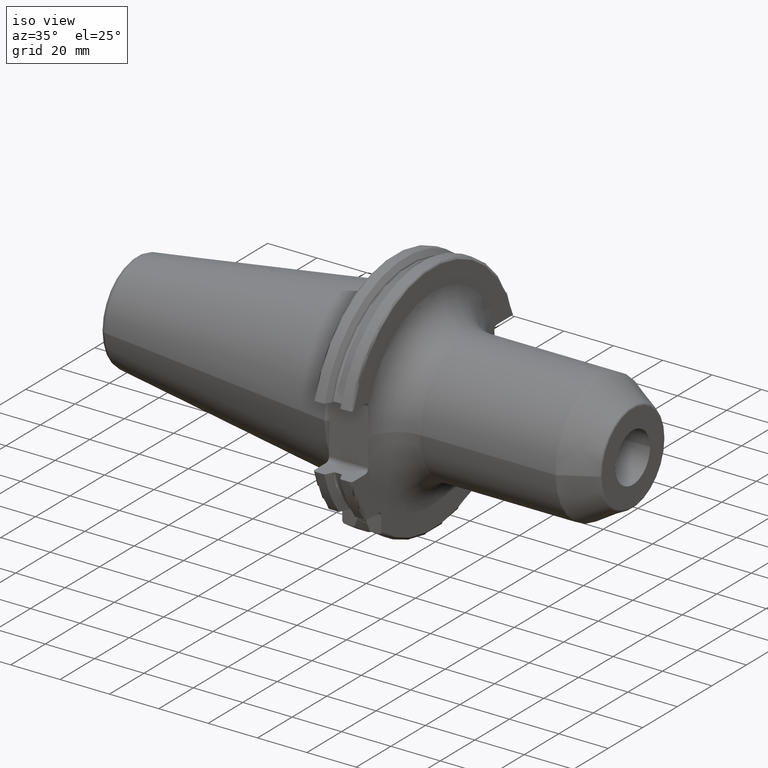
[diagram: clean part render]
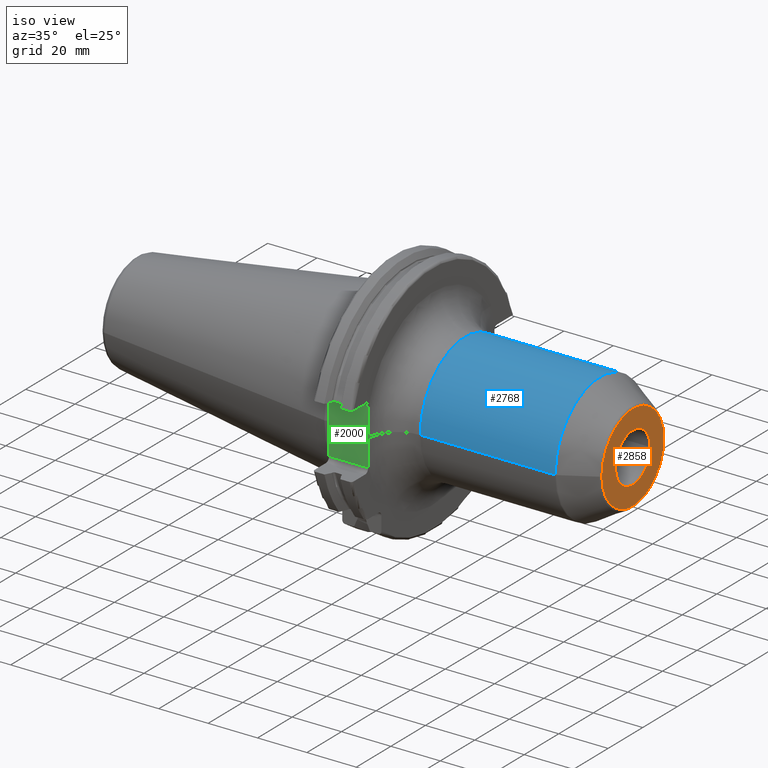
[diagram: same view with three faces highlighted in distinct colors, each labeled with its STEP entity id]
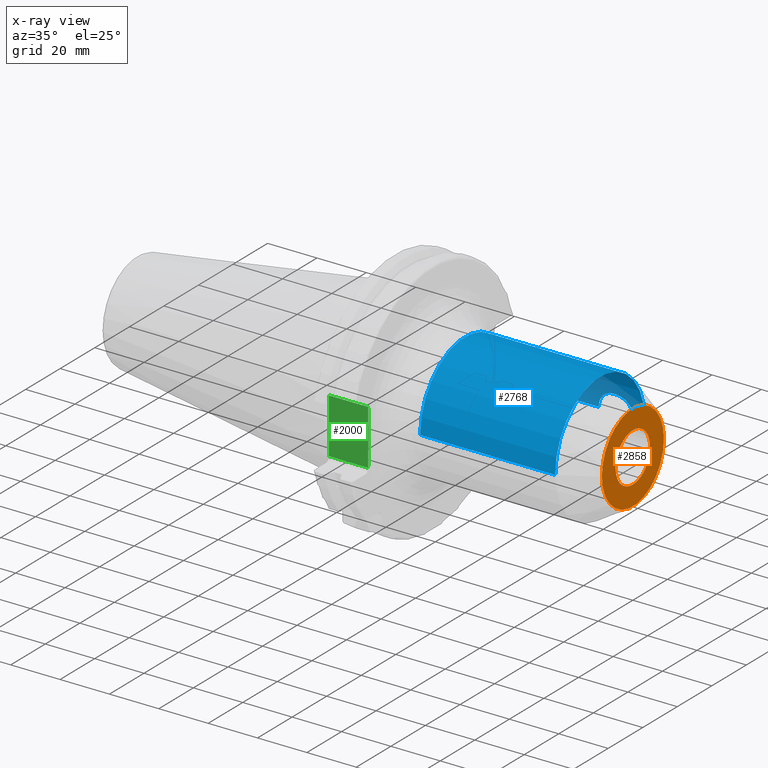
[diagram: x-ray of the same camera — body ghosted, the three highlighted faces saturated]
A machine part, iso view with three faces highlighted in distinct colors.
The next image is the same camera in x-ray (body ghosted, the three faces saturated) — at least one of them is partly hidden behind the body in this view.
Their STEP definitions:

[orange] entity #2858 — the highlighted planar face has unit normal (1, 0, 0).
#1129=CARTESIAN_POINT('',(1.E2,0.E0,0.E0));
#1130=DIRECTION('',(1.E0,0.E0,0.E0));
#1131=DIRECTION('',(0.E0,1.E0,0.E0));
#1132=AXIS2_PLACEMENT_3D('',#1129,#1130,#1131);
#1134=CARTESIAN_POINT('',(1.E2,0.E0,0.E0));
#1135=DIRECTION('',(1.E0,0.E0,0.E0));
#1136=DIRECTION('',(0.E0,-1.E0,0.E0));
#1137=AXIS2_PLACEMENT_3D('',#1134,#1135,#1136);
#1139=CARTESIAN_POINT('',(1.E2,0.E0,0.E0));
#1140=DIRECTION('',(-1.E0,0.E0,0.E0));
#1141=DIRECTION('',(0.E0,1.E0,0.E0));
#1142=AXIS2_PLACEMENT_3D('',#1139,#1140,#1141);
#1144=CARTESIAN_POINT('',(1.E2,0.E0,0.E0));
#1145=DIRECTION('',(-1.E0,0.E0,0.E0));
#1146=DIRECTION('',(0.E0,-1.E0,0.E0));
#1147=AXIS2_PLACEMENT_3D('',#1144,#1145,#1146);
#1662=CARTESIAN_POINT('',(1.E2,-1.E1,0.E0));
#1663=VERTEX_POINT('',#1662);
#1672=CARTESIAN_POINT('',(1.E2,1.E1,0.E0));
#1673=VERTEX_POINT('',#1672);
#1698=CARTESIAN_POINT('',(1.E2,1.791709623135E1,-2.610513321918E-14));
#1699=CARTESIAN_POINT('',(1.E2,-1.791709623135E1,2.391092176421E-14));
#1700=VERTEX_POINT('',#1698);
#1701=VERTEX_POINT('',#1699);
#2843=CARTESIAN_POINT('',(1.E2,0.E0,0.E0));
#2844=DIRECTION('',(1.E0,0.E0,0.E0));
#2845=DIRECTION('',(0.E0,-1.E0,0.E0));
#2846=AXIS2_PLACEMENT_3D('',#2843,#2844,#2845);
#2847=PLANE('',#2846);
#2849=ORIENTED_EDGE('',*,*,#2848,.T.);
#2851=ORIENTED_EDGE('',*,*,#2850,.T.);
#2852=EDGE_LOOP('',(#2849,#2851));
#2853=FACE_OUTER_BOUND('',#2852,.F.);
#2854=ORIENTED_EDGE('',*,*,#2827,.T.);
#2855=ORIENTED_EDGE('',*,*,#2806,.T.);
#2856=EDGE_LOOP('',(#2854,#2855));
#2857=FACE_BOUND('',#2856,.F.);
#2858=ADVANCED_FACE('',(#2853,#2857),#2847,.T.);
#1133=CIRCLE('',#1132,1.E1);
#1138=CIRCLE('',#1137,1.E1);
#1143=CIRCLE('',#1142,1.791709623135E1);
#1148=CIRCLE('',#1147,1.791709623135E1);
#2806=EDGE_CURVE('',#1663,#1673,#1138,.T.);
#2827=EDGE_CURVE('',#1673,#1663,#1133,.T.);
#2848=EDGE_CURVE('',#1700,#1701,#1143,.T.);
#2850=EDGE_CURVE('',#1701,#1700,#1148,.T.);

[blue] entity #2768 — the highlighted cylindrical surface (partial cylindrical patch) has radius 26 mm, axis along (1, 0, 0).
#1014=CARTESIAN_POINT('',(8.2E1,2.6E1,0.E0));
#1015=CARTESIAN_POINT('',(8.2E1,2.6E1,3.688700365547E-1));
#1016=CARTESIAN_POINT('',(8.194241328951E1,2.598440816567E1,1.095768183701E0));
#1017=CARTESIAN_POINT('',(8.168752604998E1,2.591696560013E1,2.162390248794E0));
#1018=CARTESIAN_POINT('',(8.127181305540E1,2.581202667241E1,3.171802240503E0));
#1019=CARTESIAN_POINT('',(8.070403285449E1,2.567891785329E1,4.106632391955E0));
#1020=CARTESIAN_POINT('',(7.999327990587E1,2.552920651528E1,4.946935450606E0));
#1021=CARTESIAN_POINT('',(7.915481362706E1,2.537718516152E1,5.670026667281E0));
#1022=CARTESIAN_POINT('',(7.820516529677E1,2.523784940180E1,6.256313396823E0));
#1023=CARTESIAN_POINT('',(7.717848016621E1,2.512726555477E1,6.682868557413E0));
#1024=CARTESIAN_POINT('',(7.611005969530E1,2.505679734064E1,6.940164530513E0));
#1025=CARTESIAN_POINT('',(7.502167977437E1,2.503203016422E1,7.028211948375E0));
#1026=CARTESIAN_POINT('',(7.393184636579E1,2.505494536913E1,6.946790718010E0));
#1027=CARTESIAN_POINT('',(7.286170085759E1,2.512379246407E1,6.695800664134E0));
#1028=CARTESIAN_POINT('',(7.183359951259E1,2.523292947042E1,6.275924090974E0));
#1029=CARTESIAN_POINT('',(7.088037431050E1,2.537136925578E1,5.695837803765E0));
#1030=CARTESIAN_POINT('',(7.003282006293E1,2.552401413418E1,4.973728696240E0));
#1031=CARTESIAN_POINT('',(6.931285574607E1,2.567510483974E1,4.130709548227E0));
#1032=CARTESIAN_POINT('',(6.873763593473E1,2.580969489378E1,3.191229531009E0));
#1033=CARTESIAN_POINT('',(6.831678986258E1,2.591583569490E1,2.176807168033E0));
#1034=CARTESIAN_POINT('',(6.805844774736E1,2.598417363926E1,1.103674348857E0));
#1035=CARTESIAN_POINT('',(6.8E1,2.6E1,3.716442086953E-1));
#1036=CARTESIAN_POINT('',(6.8E1,2.6E1,0.E0));
#1038=CARTESIAN_POINT('',(8.673205080757E1,0.E0,0.E0));
#1039=DIRECTION('',(-1.E0,0.E0,0.E0));
#1040=DIRECTION('',(0.E0,-1.E0,0.E0));
#1041=AXIS2_PLACEMENT_3D('',#1038,#1039,#1040);
#1043=CARTESIAN_POINT('',(3.205E1,0.E0,0.E0));
#1044=DIRECTION('',(1.E0,0.E0,0.E0));
#1045=DIRECTION('',(0.E0,1.E0,0.E0));
#1046=AXIS2_PLACEMENT_3D('',#1043,#1044,#1045);
#1201=DIRECTION('',(-9.999999997662E-1,-6.464800444348E-10,-2.162294211396E-5));
#1202=VECTOR('',#1201,3.595000000840E1);
#1203=CARTESIAN_POINT('',(6.8E1,2.6E1,0.E0));
#1204=LINE('',#1203,#1202);
#1210=DIRECTION('',(-9.999999998990E-1,4.250198603982E-10,1.421572071605E-5));
#1211=VECTOR('',#1210,5.468205081309E1);
#1212=CARTESIAN_POINT('',(8.673205080757E1,-2.6E1,6.624787872083E-12));
#1213=LINE('',#1212,#1211);
#1219=DIRECTION('',(-1.E0,0.E0,1.398051134671E-12));
#1220=VECTOR('',#1219,4.732050807569E0);
#1221=CARTESIAN_POINT('',(8.673205080757E1,2.6E1,-6.614053490555E-12));
#1222=LINE('',#1221,#1220);
#1665=CARTESIAN_POINT('',(8.2E1,2.6E1,0.E0));
#1667=VERTEX_POINT('',#1665);
#1669=CARTESIAN_POINT('',(6.8E1,2.6E1,0.E0));
#1671=VERTEX_POINT('',#1669);
#1678=CARTESIAN_POINT('',(3.205E1,-2.6E1,0.E0));
#1679=CARTESIAN_POINT('',(3.205E1,2.6E1,0.E0));
#1680=VERTEX_POINT('',#1678);
#1681=VERTEX_POINT('',#1679);
#1686=CARTESIAN_POINT('',(8.673205080757E1,2.6E1,0.E0));
#1687=CARTESIAN_POINT('',(8.673205080757E1,-2.6E1,0.E0));
#1688=VERTEX_POINT('',#1686);
#1689=VERTEX_POINT('',#1687);
#2750=CARTESIAN_POINT('',(1.50025E1,0.E0,0.E0));
#2751=DIRECTION('',(1.E0,0.E0,0.E0));
#2752=DIRECTION('',(0.E0,-1.E0,0.E0));
#2753=AXIS2_PLACEMENT_3D('',#2750,#2751,#2752);
#2754=CYLINDRICAL_SURFACE('',#2753,2.6E1);
#2756=ORIENTED_EDGE('',*,*,#2755,.F.);
#2758=ORIENTED_EDGE('',*,*,#2757,.F.);
#2760=ORIENTED_EDGE('',*,*,#2759,.F.);
#2762=ORIENTED_EDGE('',*,*,#2761,.T.);
#2763=ORIENTED_EDGE('',*,*,#2011,.F.);
#2765=ORIENTED_EDGE('',*,*,#2764,.F.);
#2766=EDGE_LOOP('',(#2756,#2758,#2760,#2762,#2763,#2765));
#2767=FACE_OUTER_BOUND('',#2766,.F.);
#2768=ADVANCED_FACE('',(#2767),#2754,.T.);
#1037=B_SPLINE_CURVE_WITH_KNOTS('',3,(#1014,#1015,#1016,#1017,#1018,#1019,#1020,
#1021,#1022,#1023,#1024,#1025,#1026,#1027,#1028,#1029,#1030,#1031,#1032,#1033,
#1034,#1035,#1036),.UNSPECIFIED.,.F.,.F.,(4,1,1,1,1,1,1,1,1,1,1,1,1,1,1,1,1,1,1,
1,4),(0.E0,5.E-2,1.E-1,1.5E-1,2.E-1,2.5E-1,3.E-1,3.5E-1,4.E-1,4.5E-1,5.E-1,
5.5E-1,6.E-1,6.5E-1,7.E-1,7.5E-1,8.E-1,8.5E-1,9.E-1,9.5E-1,1.E0),.UNSPECIFIED.);
#1042=CIRCLE('',#1041,2.6E1);
#1047=CIRCLE('',#1046,2.6E1);
#2011=EDGE_CURVE('',#1681,#1680,#1047,.T.);
#2755=EDGE_CURVE('',#1667,#1671,#1037,.T.);
#2757=EDGE_CURVE('',#1688,#1667,#1222,.T.);
#2759=EDGE_CURVE('',#1689,#1688,#1042,.T.);
#2761=EDGE_CURVE('',#1689,#1680,#1213,.T.);
#2764=EDGE_CURVE('',#1671,#1681,#1204,.T.);

[green] entity #2000 — the highlighted planar face has unit normal (0, 1, 0).
#157=DIRECTION('',(0.E0,3.274579944236E-5,9.999999994639E-1));
#158=VECTOR('',#157,4.377898527251E-1);
#159=CARTESIAN_POINT('',(1.905E1,-3.75E1,-1.115E1));
#160=LINE('',#159,#158);
#166=DIRECTION('',(0.E0,1.541898170726E-5,9.999999998811E-1));
#167=VECTOR('',#166,4.379632685916E-1);
#168=CARTESIAN_POINT('',(1.905E1,-3.750000675295E1,1.071203673146E1));
#169=LINE('',#168,#167);
#178=CARTESIAN_POINT('',(1.913682842217E1,-3.75E1,2.227582378035E-3));
#179=CARTESIAN_POINT('',(1.913683665024E1,-3.75E1,-1.190213575254E0));
#180=CARTESIAN_POINT('',(1.912285912665E1,-3.749999808856E1,-3.573910659861E0));
#181=CARTESIAN_POINT('',(1.907401116160E1,-3.750000669003E1,-7.155405654851E0));
#182=CARTESIAN_POINT('',(1.905E1,-3.749998566422E1,-9.528078238761E0));
#183=CARTESIAN_POINT('',(1.905E1,-3.749998566422E1,-1.071221014751E1));
#208=DIRECTION('',(-1.E0,0.E0,0.E0));
#209=VECTOR('',#208,1.585E1);
#210=CARTESIAN_POINT('',(1.905E1,-3.75E1,-1.115E1));
#211=LINE('',#210,#209);
#212=DIRECTION('',(-1.E0,0.E0,0.E0));
#213=VECTOR('',#212,1.585E1);
#214=CARTESIAN_POINT('',(1.905E1,-3.75E1,1.115E1));
#215=LINE('',#214,#213);
#241=CARTESIAN_POINT('',(1.905E1,-3.750000675295E1,1.071203673146E1));
#242=CARTESIAN_POINT('',(1.905E1,-3.750000675295E1,9.527058737012E0));
#243=CARTESIAN_POINT('',(1.907403673172E1,-3.749999684862E1,7.153858261455E0));
#244=CARTESIAN_POINT('',(1.912283823041E1,-3.750000090039E1,3.575091456566E0));
#245=CARTESIAN_POINT('',(1.913682020270E1,-3.75E1,1.193423563693E0));
#246=CARTESIAN_POINT('',(1.913682842217E1,-3.75E1,2.227582378035E-3));
#311=DIRECTION('',(0.E0,0.E0,1.E0));
#312=VECTOR('',#311,2.23E1);
#313=CARTESIAN_POINT('',(3.2E0,-3.75E1,-1.115E1));
#314=LINE('',#313,#312);
#1622=CARTESIAN_POINT('',(1.905E1,-3.75E1,-1.115E1));
#1623=CARTESIAN_POINT('',(3.2E0,-3.75E1,-1.115E1));
#1624=VERTEX_POINT('',#1622);
#1625=VERTEX_POINT('',#1623);
#1634=CARTESIAN_POINT('',(1.905E1,-3.75E1,1.115E1));
#1635=CARTESIAN_POINT('',(3.2E0,-3.75E1,1.115E1));
#1636=VERTEX_POINT('',#1634);
#1637=VERTEX_POINT('',#1635);
#1674=CARTESIAN_POINT('',(1.905E1,-3.749998627717E1,-1.071219068221E1));
#1676=VERTEX_POINT('',#1674);
#1683=CARTESIAN_POINT('',(1.905E1,-3.750006518441E1,1.071191444911E1));
#1685=VERTEX_POINT('',#1683);
#1705=VERTEX_POINT('',#246);
#1982=CARTESIAN_POINT('',(1.905E1,-3.75E1,-1.29E1));
#1983=DIRECTION('',(0.E0,1.E0,0.E0));
#1984=DIRECTION('',(0.E0,0.E0,1.E0));
#1985=AXIS2_PLACEMENT_3D('',#1982,#1983,#1984);
#1986=PLANE('',#1985);
#1987=ORIENTED_EDGE('',*,*,#1948,.F.);
#1989=ORIENTED_EDGE('',*,*,#1988,.T.);
#1990=ORIENTED_EDGE('',*,*,#1969,.T.);
#1991=ORIENTED_EDGE('',*,*,#1936,.F.);
#1993=ORIENTED_EDGE('',*,*,#1992,.T.);
#1995=ORIENTED_EDGE('',*,*,#1994,.T.);
#1997=ORIENTED_EDGE('',*,*,#1996,.F.);
#1998=EDGE_LOOP('',(#1987,#1989,#1990,#1991,#1993,#1995,#1997));
#1999=FACE_OUTER_BOUND('',#1998,.F.);
#2000=ADVANCED_FACE('',(#1999),#1986,.F.);
#184=B_SPLINE_CURVE_WITH_KNOTS('',3,(#178,#179,#180,#181,#182,#183),
.UNSPECIFIED.,.F.,.F.,(4,1,1,4),(0.E0,3.333333333333E-1,6.666666666667E-1,1.E0),
.UNSPECIFIED.);
#247=B_SPLINE_CURVE_WITH_KNOTS('',3,(#241,#242,#243,#244,#245,#246),
.UNSPECIFIED.,.F.,.F.,(4,1,1,4),(0.E0,3.333333333333E-1,6.666666666667E-1,1.E0),
.UNSPECIFIED.);
#1936=EDGE_CURVE('',#1624,#1676,#160,.T.);
#1948=EDGE_CURVE('',#1685,#1636,#169,.T.);
#1969=EDGE_CURVE('',#1705,#1676,#184,.T.);
#1988=EDGE_CURVE('',#1685,#1705,#247,.T.);
#1992=EDGE_CURVE('',#1624,#1625,#211,.T.);
#1994=EDGE_CURVE('',#1625,#1637,#314,.T.);
#1996=EDGE_CURVE('',#1636,#1637,#215,.T.);